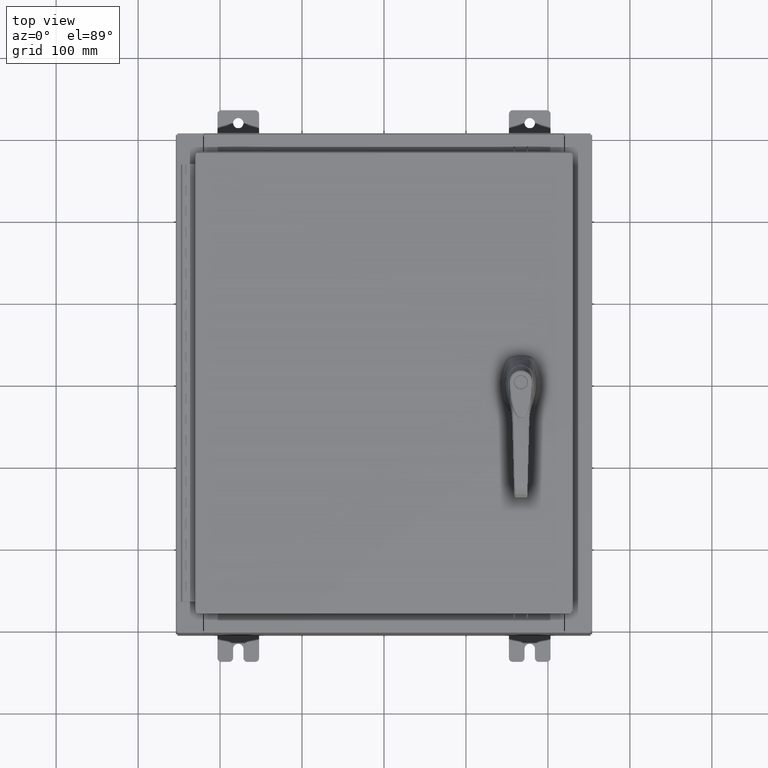
[diagram: clean part render]
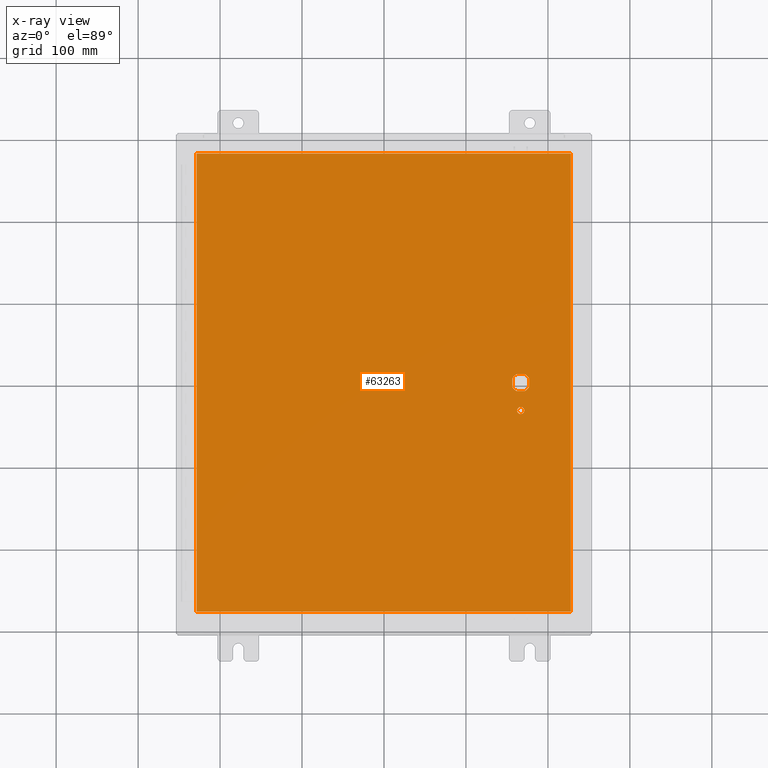
[diagram: x-ray — body ghosted, one internal face saturated and labeled with its STEP entity id]
A machine part, top view, then the same camera in x-ray: the body is ghosted and one INTERNAL B-rep face — a face not visible from any outside direction — is saturated and labeled: STEP entity #63263.
In plain terms, the highlighted planar face has unit normal (0, 0, -1).
Its self-contained STEP definition (entity closure, byte-faithful):
#344 = CARTESIAN_POINT ( 'NONE',  ( 6.175000000000072700, 0.0000000000000000000, -0.07470000000000003000 ) ) ;
#509 = CARTESIAN_POINT ( 'NONE',  ( 8.990299999999999500, 11.00630000000000000, -0.07470000000000019700 ) ) ;
#656 = ORIENTED_EDGE ( 'NONE', *, *, #56753, .T. ) ;
#769 = DIRECTION ( 'NONE',  ( 0.0000000000000000000, 0.0000000000000000000, -1.000000000000000000 ) ) ;
#2621 = CARTESIAN_POINT ( 'NONE',  ( 6.377772629243688500, 0.4029999999999252000, -0.07470000000000003000 ) ) ;
#2875 = ORIENTED_EDGE ( 'NONE', *, *, #75122, .F. ) ;
#3186 = AXIS2_PLACEMENT_3D ( 'NONE', #25249, #98798, #41415 ) ;
#5602 = CARTESIAN_POINT ( 'NONE',  ( 6.406499999999998500, -1.338000000000000100, -0.07470000000000003000 ) ) ;
#5613 = EDGE_CURVE ( 'NONE', #112021, #76461, #17218, .T. ) ;
#5855 = CIRCLE ( 'NONE', #60616, 0.4499999999999156900 ) ;
#6646 = DIRECTION ( 'NONE',  ( -1.000000000000000000, 0.0000000000000000000, 0.0000000000000000000 ) ) ;
#6827 = VECTOR ( 'NONE', #35829, 39.37007874015748100 ) ;
#9141 = DIRECTION ( 'NONE',  ( 0.0000000000000000000, -1.000000000000000000, 0.0000000000000000000 ) ) ;
#9930 = CIRCLE ( 'NONE', #62862, 0.4499999999999156900 ) ;
#10598 = DIRECTION ( 'NONE',  ( -0.0000000000000000000, -0.0000000000000000000, 1.000000000000000000 ) ) ;
#11405 = CARTESIAN_POINT ( 'NONE',  ( 8.990299999999997700, 11.00630000000000000, -0.07470000000000000300 ) ) ;
#11620 = CARTESIAN_POINT ( 'NONE',  ( 6.577999999999998500, 0.0000000000000000000, -0.07470000000000003000 ) ) ;
#13564 = EDGE_CURVE ( 'NONE', #48313, #22295, #68502, .T. ) ;
#13781 = ORIENTED_EDGE ( 'NONE', *, *, #14811, .F. ) ;
#13949 = AXIS2_PLACEMENT_3D ( 'NONE', #63167, #10598, #72023 ) ;
#14811 = EDGE_CURVE ( 'NONE', #83596, #24355, #72468, .T. ) ;
#15730 = CARTESIAN_POINT ( 'NONE',  ( 6.980999999999924400, 0.0000000000000000000, -0.07470000000000003000 ) ) ;
#15838 = VERTEX_POINT ( 'NONE', #37816 ) ;
#16780 = CIRCLE ( 'NONE', #37193, 0.1715000000000000700 ) ;
#17218 = CIRCLE ( 'NONE', #3186, 0.4499999999999156900 ) ;
#17560 = CARTESIAN_POINT ( 'NONE',  ( 6.577999999999998500, 0.0000000000000000000, -0.07470000000000003000 ) ) ;
#18246 = ORIENTED_EDGE ( 'NONE', *, *, #65341, .T. ) ;
#18688 = ORIENTED_EDGE ( 'NONE', *, *, #88842, .T. ) ;
#19168 = DIRECTION ( 'NONE',  ( 0.0000000000000000000, 1.000000000000000000, 0.0000000000000000000 ) ) ;
#19176 = LINE ( 'NONE', #44999, #65943 ) ;
#19709 = EDGE_LOOP ( 'NONE', ( #13781, #94234, #2875, #57913 ) ) ;
#19876 = DIRECTION ( 'NONE',  ( 0.0000000000000000000, -1.000000000000000000, 0.0000000000000000000 ) ) ;
#20447 = DIRECTION ( 'NONE',  ( -1.000000000000000000, 0.0000000000000000000, 0.0000000000000000000 ) ) ;
#22295 = VERTEX_POINT ( 'NONE', #87299 ) ;
#22993 = VECTOR ( 'NONE', #19168, 39.37007874015748100 ) ;
#23072 = FACE_BOUND ( 'NONE', #99145, .T. ) ;
#23457 = EDGE_LOOP ( 'NONE', ( #44207, #100005, #18688, #101359, #94811, #90736, #45712, #656 ) ) ;
#24355 = VERTEX_POINT ( 'NONE', #11405 ) ;
#25249 = CARTESIAN_POINT ( 'NONE',  ( 6.577999999999998500, 0.0000000000000000000, -0.07470000000000003000 ) ) ;
#25698 = AXIS2_PLACEMENT_3D ( 'NONE', #11620, #73079, #20447 ) ;
#26406 = DIRECTION ( 'NONE',  ( -1.000000000000000000, 0.0000000000000000000, 0.0000000000000000000 ) ) ;
#26858 = PLANE ( 'NONE',  #66094 ) ;
#28476 = DIRECTION ( 'NONE',  ( -1.000000000000000000, 0.0000000000000000000, 0.0000000000000000000 ) ) ;
#29060 = DIRECTION ( 'NONE',  ( -0.0000000000000000000, -0.0000000000000000000, 1.000000000000000000 ) ) ;
#29558 = CARTESIAN_POINT ( 'NONE',  ( 6.377772629243688500, -0.4029999999999250300, -0.07470000000000003000 ) ) ;
#30202 = LINE ( 'NONE', #509, #6827 ) ;
#32129 = VECTOR ( 'NONE', #48487, 39.37007874015748100 ) ;
#32531 = ORIENTED_EDGE ( 'NONE', *, *, #58406, .T. ) ;
#35717 = CARTESIAN_POINT ( 'NONE',  ( 0.0000000000000000000, 0.0000000000000000000, -0.07470000000000000300 ) ) ;
#35829 = DIRECTION ( 'NONE',  ( -1.000000000000000000, -0.0000000000000000000, -0.0000000000000000000 ) ) ;
#37193 = AXIS2_PLACEMENT_3D ( 'NONE', #81634, #29060, #90424 ) ;
#37589 = LINE ( 'NONE', #344, #112959 ) ;
#37816 = CARTESIAN_POINT ( 'NONE',  ( -8.990299999999999500, 11.00630000000000000, -0.07470000000000000300 ) ) ;
#40849 = CARTESIAN_POINT ( 'NONE',  ( -8.990299999999999500, 11.00630000000000100, -0.07470000000000019700 ) ) ;
#40961 = FACE_BOUND ( 'NONE', #23457, .T. ) ;
#41415 = DIRECTION ( 'NONE',  ( -1.000000000000000000, 8.881784197001256300E-016, 0.0000000000000000000 ) ) ;
#44207 = ORIENTED_EDGE ( 'NONE', *, *, #58108, .T. ) ;
#44999 = CARTESIAN_POINT ( 'NONE',  ( -8.990300000000001300, -11.00630000000000100, -0.07469999999999910000 ) ) ;
#45109 = VECTOR ( 'NONE', #19876, 39.37007874015748100 ) ;
#45687 = CARTESIAN_POINT ( 'NONE',  ( 8.990299999999997700, -11.00630000000000000, -0.07470000000000021100 ) ) ;
#45712 = ORIENTED_EDGE ( 'NONE', *, *, #5613, .T. ) ;
#47070 = CARTESIAN_POINT ( 'NONE',  ( 6.749499999999998500, -1.338000000000000100, -0.07470000000000003000 ) ) ;
#48313 = VERTEX_POINT ( 'NONE', #65326 ) ;
#48487 = DIRECTION ( 'NONE',  ( 1.000000000000000000, 0.0000000000000000000, 0.0000000000000000000 ) ) ;
#54569 = CARTESIAN_POINT ( 'NONE',  ( 6.778227370756308500, -0.4029999999999252000, -0.07470000000000003000 ) ) ;
#56722 = LINE ( 'NONE', #81045, #103315 ) ;
#56753 = EDGE_CURVE ( 'NONE', #76461, #74388, #102045, .T. ) ;
#57133 = CARTESIAN_POINT ( 'NONE',  ( 8.990299999999997700, -11.00630000000000000, -0.07470000000000000300 ) ) ;
#57484 = VERTEX_POINT ( 'NONE', #2621 ) ;
#57913 = ORIENTED_EDGE ( 'NONE', *, *, #71722, .F. ) ;
#58108 = EDGE_CURVE ( 'NONE', #74388, #22295, #9930, .T. ) ;
#58406 = EDGE_CURVE ( 'NONE', #58684, #58505, #16780, .T. ) ;
#58505 = VERTEX_POINT ( 'NONE', #47070 ) ;
#58684 = VERTEX_POINT ( 'NONE', #5602 ) ;
#59203 = DIRECTION ( 'NONE',  ( -0.0000000000000000000, -0.0000000000000000000, 1.000000000000000000 ) ) ;
#60616 = AXIS2_PLACEMENT_3D ( 'NONE', #111674, #59203, #6646 ) ;
#60776 = EDGE_CURVE ( 'NONE', #106297, #83596, #19176, .T. ) ;
#62147 = DIRECTION ( 'NONE',  ( -1.000000000000000000, 0.0000000000000000000, -0.0000000000000000000 ) ) ;
#62862 = AXIS2_PLACEMENT_3D ( 'NONE', #17560, #78996, #26406 ) ;
#63167 = CARTESIAN_POINT ( 'NONE',  ( 6.577999999999998500, -1.338000000000000100, -0.07470000000000003000 ) ) ;
#63263 = ADVANCED_FACE ( 'NONE', ( #23072, #110827, #40961 ), #26858, .T. ) ;
#65326 = CARTESIAN_POINT ( 'NONE',  ( 6.980999999999924400, 0.2002273707563080300, -0.07470000000000003000 ) ) ;
#65341 = EDGE_CURVE ( 'NONE', #58505, #58684, #76395, .T. ) ;
#65943 = VECTOR ( 'NONE', #106281, 39.37007874015748100 ) ;
#66094 = AXIS2_PLACEMENT_3D ( 'NONE', #35717, #769, #62147 ) ;
#67314 = DIRECTION ( 'NONE',  ( 0.0000000000000000000, -1.000000000000000000, 0.0000000000000000000 ) ) ;
#68502 = LINE ( 'NONE', #15730, #45109 ) ;
#71190 = CARTESIAN_POINT ( 'NONE',  ( -8.990299999999997700, -11.00630000000000100, -0.07470000000000000300 ) ) ;
#71722 = EDGE_CURVE ( 'NONE', #24355, #15838, #30202, .T. ) ;
#72023 = DIRECTION ( 'NONE',  ( -1.000000000000000000, 0.0000000000000000000, 0.0000000000000000000 ) ) ;
#72468 = LINE ( 'NONE', #45687, #22993 ) ;
#73079 = DIRECTION ( 'NONE',  ( -0.0000000000000000000, -0.0000000000000000000, 1.000000000000000000 ) ) ;
#74388 = VERTEX_POINT ( 'NONE', #54569 ) ;
#75122 = EDGE_CURVE ( 'NONE', #15838, #106297, #81920, .T. ) ;
#76395 = CIRCLE ( 'NONE', #13949, 0.1715000000000000700 ) ;
#76461 = VERTEX_POINT ( 'NONE', #29558 ) ;
#78996 = DIRECTION ( 'NONE',  ( -0.0000000000000000000, -0.0000000000000000000, 1.000000000000000000 ) ) ;
#79272 = EDGE_CURVE ( 'NONE', #57484, #81946, #91885, .T. ) ;
#81045 = CARTESIAN_POINT ( 'NONE',  ( 0.0000000000000000000, 0.4029999999999252000, -0.07470000000000003000 ) ) ;
#81634 = CARTESIAN_POINT ( 'NONE',  ( 6.577999999999998500, -1.338000000000000100, -0.07470000000000003000 ) ) ;
#81920 = LINE ( 'NONE', #40849, #107903 ) ;
#81946 = VERTEX_POINT ( 'NONE', #99020 ) ;
#83596 = VERTEX_POINT ( 'NONE', #57133 ) ;
#87299 = CARTESIAN_POINT ( 'NONE',  ( 6.980999999999924400, -0.2002273707563080300, -0.07470000000000003000 ) ) ;
#87632 = EDGE_CURVE ( 'NONE', #81946, #112021, #37589, .T. ) ;
#88842 = EDGE_CURVE ( 'NONE', #48313, #90017, #5855, .T. ) ;
#90017 = VERTEX_POINT ( 'NONE', #111418 ) ;
#90424 = DIRECTION ( 'NONE',  ( -1.000000000000000000, 0.0000000000000000000, 0.0000000000000000000 ) ) ;
#90736 = ORIENTED_EDGE ( 'NONE', *, *, #87632, .T. ) ;
#91885 = CIRCLE ( 'NONE', #25698, 0.4499999999999156900 ) ;
#94234 = ORIENTED_EDGE ( 'NONE', *, *, #60776, .F. ) ;
#94811 = ORIENTED_EDGE ( 'NONE', *, *, #79272, .T. ) ;
#98798 = DIRECTION ( 'NONE',  ( -0.0000000000000000000, -0.0000000000000000000, 1.000000000000000000 ) ) ;
#99020 = CARTESIAN_POINT ( 'NONE',  ( 6.175000000000072700, 0.2002273707563080300, -0.07470000000000003000 ) ) ;
#99145 = EDGE_LOOP ( 'NONE', ( #18246, #32531 ) ) ;
#100005 = ORIENTED_EDGE ( 'NONE', *, *, #13564, .F. ) ;
#100574 = CARTESIAN_POINT ( 'NONE',  ( 0.0000000000000000000, -0.4029999999999252000, -0.07470000000000003000 ) ) ;
#101359 = ORIENTED_EDGE ( 'NONE', *, *, #104609, .T. ) ;
#102045 = LINE ( 'NONE', #100574, #32129 ) ;
#103315 = VECTOR ( 'NONE', #28476, 39.37007874015748100 ) ;
#104609 = EDGE_CURVE ( 'NONE', #90017, #57484, #56722, .T. ) ;
#106281 = DIRECTION ( 'NONE',  ( 1.000000000000000000, -0.0000000000000000000, -0.0000000000000000000 ) ) ;
#106297 = VERTEX_POINT ( 'NONE', #71190 ) ;
#107903 = VECTOR ( 'NONE', #67314, 39.37007874015748100 ) ;
#109766 = CARTESIAN_POINT ( 'NONE',  ( 6.175000000000072700, -0.2002273707563079800, -0.07470000000000003000 ) ) ;
#110827 = FACE_OUTER_BOUND ( 'NONE', #19709, .T. ) ;
#111418 = CARTESIAN_POINT ( 'NONE',  ( 6.778227370756308500, 0.4029999999999250300, -0.07470000000000003000 ) ) ;
#111674 = CARTESIAN_POINT ( 'NONE',  ( 6.577999999999998500, 0.0000000000000000000, -0.07470000000000003000 ) ) ;
#112021 = VERTEX_POINT ( 'NONE', #109766 ) ;
#112959 = VECTOR ( 'NONE', #9141, 39.37007874015748100 ) ;